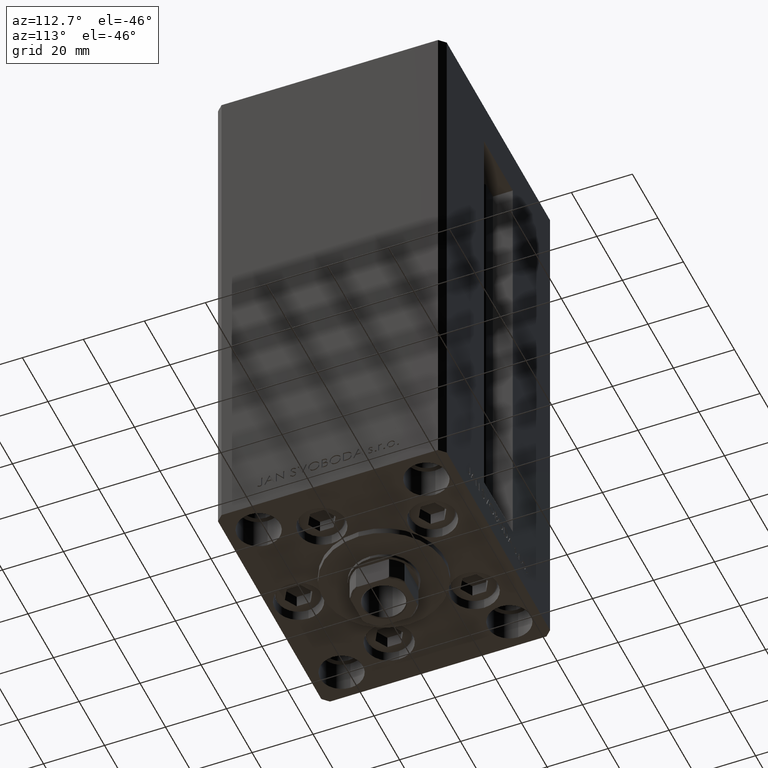
[diagram: clean part render]
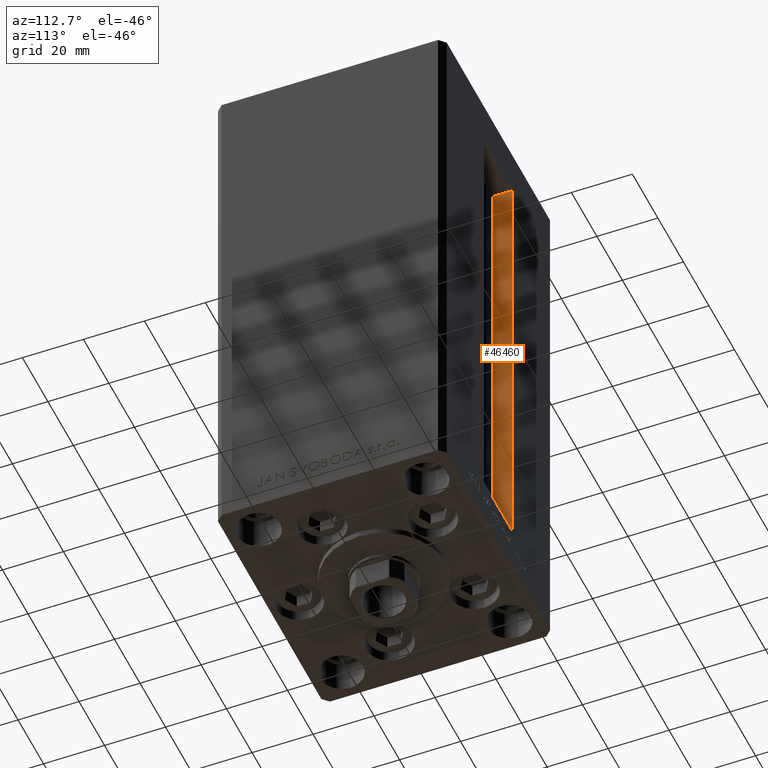
[diagram: same view with one face highlighted and labeled with its STEP entity id]
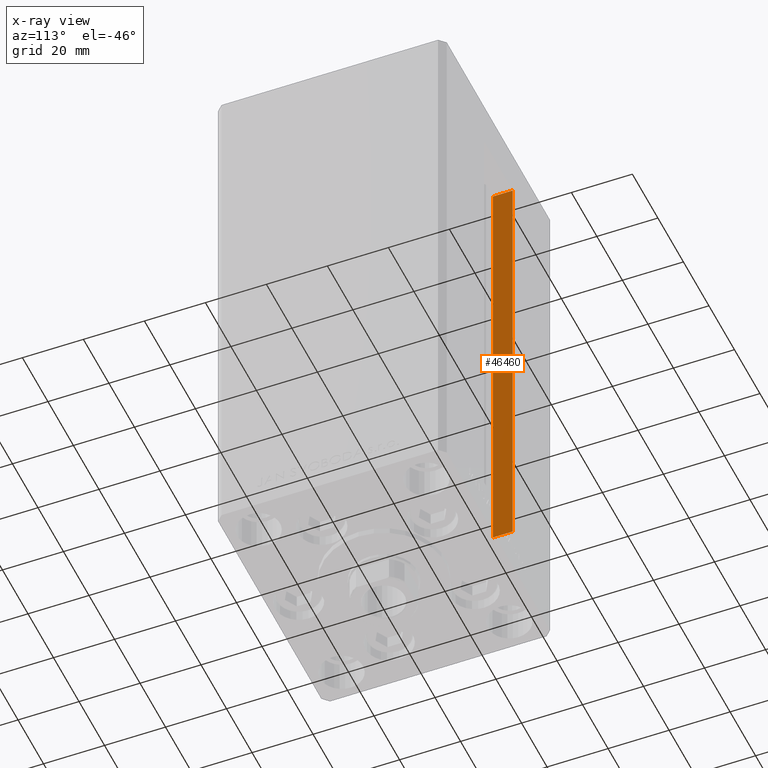
[diagram: x-ray of the same camera — body ghosted, the highlighted face saturated]
A machine part, auxiliary view. The second image highlights one B-rep face of the part: STEP entity #46460.
The next image is the same camera in x-ray: the body ghosted, the highlighted face saturated — about 0% of this face is hidden behind the body in this view.
In plain terms, the highlighted planar face has unit normal (-1, 0, 0).
Its self-contained STEP definition (entity closure, byte-faithful):
#784 = DIRECTION ( 'NONE',  ( 0.000000000000000000, 0.000000000000000000, 1.000000000000000000 ) ) ;
#1188 = EDGE_CURVE ( 'NONE', #3788, #35151, #35431, .T. ) ;
#1244 = DIRECTION ( 'NONE',  ( -0.000000000000000000, -0.000000000000000000, 1.000000000000000000 ) ) ;
#3090 = CARTESIAN_POINT ( 'NONE',  ( -11.25000000000000000, 30.99999999999999289, 148.5000000000000000 ) ) ;
#3439 = EDGE_LOOP ( 'NONE', ( #4691, #12337, #35122, #13267 ) ) ;
#3788 = VERTEX_POINT ( 'NONE', #39921 ) ;
#4691 = ORIENTED_EDGE ( 'NONE', *, *, #46079, .F. ) ;
#5276 = CARTESIAN_POINT ( 'NONE',  ( -11.25000000000000000, 37.50000000000000000, 0.000000000000000000 ) ) ;
#5473 = CARTESIAN_POINT ( 'NONE',  ( -11.25000000000000000, 30.99999999999999289, 0.000000000000000000 ) ) ;
#6808 = VERTEX_POINT ( 'NONE', #3090 ) ;
#8440 = VECTOR ( 'NONE', #21912, 1000.000000000000000 ) ;
#10116 = CARTESIAN_POINT ( 'NONE',  ( -11.25000000000000000, 0.000000000000000000, 148.5000000000000000 ) ) ;
#10435 = CARTESIAN_POINT ( 'NONE',  ( -11.25000000000000000, 30.99999999999999289, 0.000000000000000000 ) ) ;
#12337 = ORIENTED_EDGE ( 'NONE', *, *, #24668, .F. ) ;
#13267 = ORIENTED_EDGE ( 'NONE', *, *, #34471, .F. ) ;
#13552 = DIRECTION ( 'NONE',  ( -0.000000000000000000, -1.000000000000000000, -0.000000000000000000 ) ) ;
#15615 = CARTESIAN_POINT ( 'NONE',  ( -11.25000000000000000, 30.99999999999999289, 0.000000000000000000 ) ) ;
#17877 = LINE ( 'NONE', #10116, #8440 ) ;
#19388 = PLANE ( 'NONE',  #37618 ) ;
#21912 = DIRECTION ( 'NONE',  ( 0.000000000000000000, 1.000000000000000000, 0.000000000000000000 ) ) ;
#23194 = VECTOR ( 'NONE', #13552, 1000.000000000000000 ) ;
#24668 = EDGE_CURVE ( 'NONE', #3788, #26198, #28373, .T. ) ;
#26198 = VERTEX_POINT ( 'NONE', #5473 ) ;
#28373 = LINE ( 'NONE', #36922, #23194 ) ;
#30975 = DIRECTION ( 'NONE',  ( -1.000000000000000000, 0.000000000000000000, 0.000000000000000000 ) ) ;
#34471 = EDGE_CURVE ( 'NONE', #6808, #35151, #17877, .T. ) ;
#34973 = FACE_OUTER_BOUND ( 'NONE', #3439, .T. ) ;
#35122 = ORIENTED_EDGE ( 'NONE', *, *, #1188, .T. ) ;
#35151 = VERTEX_POINT ( 'NONE', #46645 ) ;
#35431 = LINE ( 'NONE', #5276, #35827 ) ;
#35827 = VECTOR ( 'NONE', #1244, 1000.000000000000000 ) ;
#36922 = CARTESIAN_POINT ( 'NONE',  ( -11.25000000000000000, 30.99999999999999289, 0.000000000000000000 ) ) ;
#37618 = AXIS2_PLACEMENT_3D ( 'NONE', #15615, #30975, #784 ) ;
#39921 = CARTESIAN_POINT ( 'NONE',  ( -11.25000000000000000, 37.50000000000000000, 0.000000000000000000 ) ) ;
#40010 = VECTOR ( 'NONE', #41083, 1000.000000000000000 ) ;
#41083 = DIRECTION ( 'NONE',  ( -0.000000000000000000, -0.000000000000000000, 1.000000000000000000 ) ) ;
#44853 = LINE ( 'NONE', #10435, #40010 ) ;
#46079 = EDGE_CURVE ( 'NONE', #26198, #6808, #44853, .T. ) ;
#46460 = ADVANCED_FACE ( 'NONE', ( #34973 ), #19388, .F. ) ;
#46645 = CARTESIAN_POINT ( 'NONE',  ( -11.25000000000000000, 37.50000000000000000, 148.5000000000000000 ) ) ;